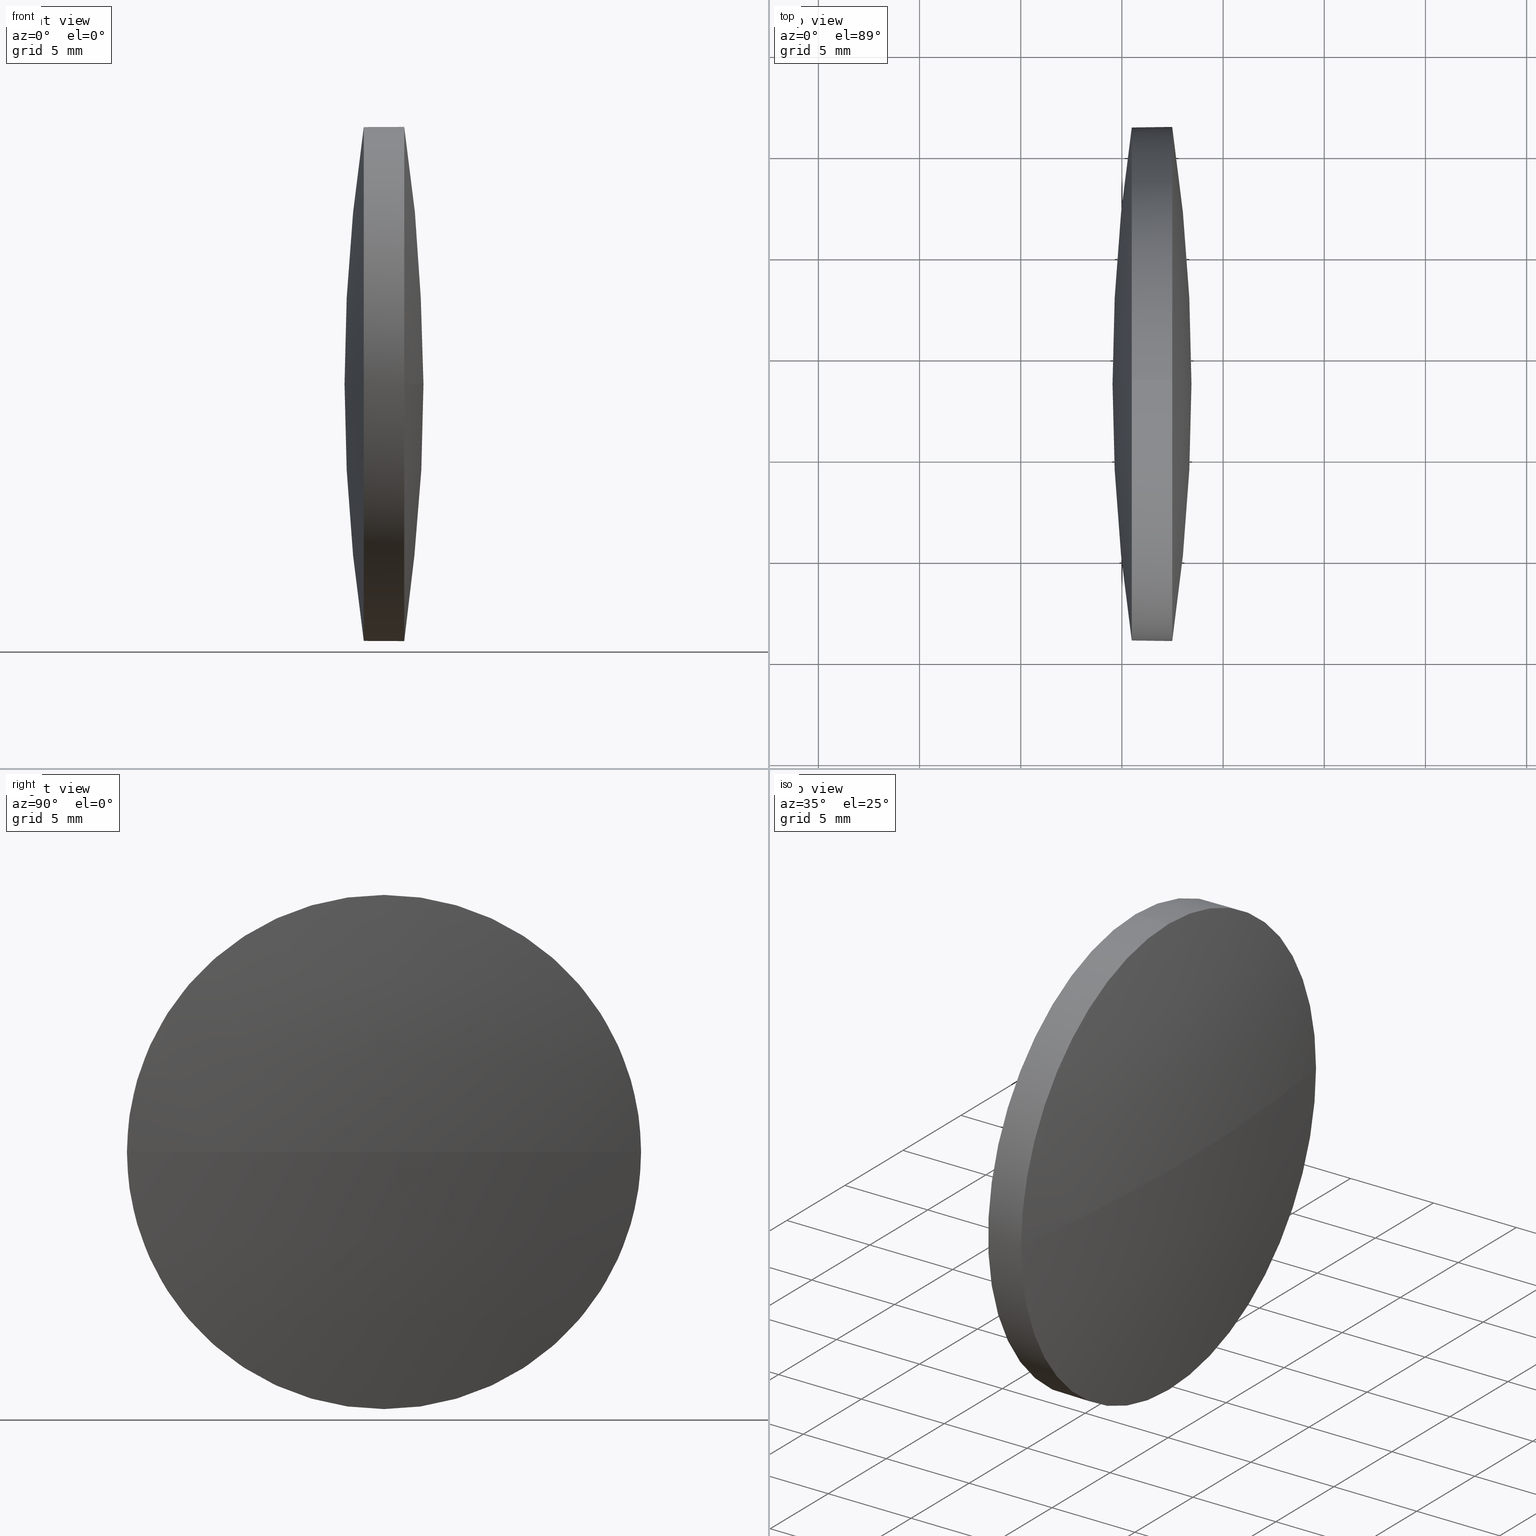
[diagram: canonical four-view strip — front | top / right | iso, engineering-drawing reading convention]
A machine part, canonical four-view strip (front | top / right | iso — engineering-drawing reading convention). The complete STEP part file that produces these views, byte-faithful:
ISO-10303-21;
HEADER;
FILE_DESCRIPTION (( 'STEP AP203' ),
    '1' );
FILE_NAME ('110142.STEP',
    '2019-07-08T09:22:34',
    ( '' ),
    ( '' ),
    'SwSTEP 2.0',
    'SolidWorks 2016',
    '' );
FILE_SCHEMA (( 'CONFIG_CONTROL_DESIGN' ));
ENDSEC;

DATA;
#1 = AXIS2_PLACEMENT_3D ( 'NONE', #20, #197, #127 ) ;
#2 = CARTESIAN_POINT ( 'NONE',  ( 87.48661080392687900, 48.63209213917348000, -12.70417422867516100 ) ) ;
#3 = DIRECTION ( 'NONE',  ( -1.000000000000000000, -0.0000000000000000000, -0.0000000000000000000 ) ) ;
#4 = APPLICATION_CONTEXT ( 'configuration controlled 3d designs of mechanical parts and assemblies' ) ;
#5 = DATE_TIME_ROLE ( 'classification_date' ) ;
#6 = COORDINATED_UNIVERSAL_TIME_OFFSET ( 8, 0, .AHEAD. ) ;
#7 = PERSON_AND_ORGANIZATION_ROLE ( 'design_supplier' ) ;
#8 = CC_DESIGN_PERSON_AND_ORGANIZATION_ASSIGNMENT ( #263, #158, ( #168 ) ) ;
#9 = DIRECTION ( 'NONE',  ( 0.0000000000000000000, 0.0000000000000000000, 1.000000000000000000 ) ) ;
#10 = APPROVAL ( #310, 'δָ��' ) ;
#11 = SPHERICAL_SURFACE ( 'NONE', #228, 85.36384337824375700 ) ;
#12 = SECURITY_CLASSIFICATION ( '', '', #28 ) ;
#13 = PRODUCT ( '110142', '110142', '', ( #54 ) ) ;
#14 = DIRECTION ( 'NONE',  ( 0.0000000000000000000, -1.224646799147353200E-016, 1.000000000000000000 ) ) ;
#15 = AXIS2_PLACEMENT_3D ( 'NONE', #44, #306, #134 ) ;
#16 = LINE ( 'NONE', #274, #141 ) ;
#17 = DIRECTION ( 'NONE',  ( 0.0000000000000000000, 0.0000000000000000000, 1.000000000000000000 ) ) ;
#18 = DIRECTION ( 'NONE',  ( 0.9999912878695206300, 5.111955789612099800E-019, 0.004174228678155401900 ) ) ;
#19 = APPROVAL_DATE_TIME ( #91, #219 ) ;
#20 = CARTESIAN_POINT ( 'NONE',  ( 87.48661080392687900, 48.63209213917348000, 0.0000000000000000000 ) ) ;
#21 = DIRECTION ( 'NONE',  ( 0.0000000000000000000, 0.0000000000000000000, -1.000000000000000000 ) ) ;
#22 = CARTESIAN_POINT ( 'NONE',  ( 169.9004558007695200, 48.63209213917348000, 0.0000000000000000000 ) ) ;
#23 = DIRECTION ( 'NONE',  ( 0.0000000000000000000, -1.625721998753305600E-016, 1.000000000000000000 ) ) ;
#24 = ORIENTED_EDGE ( 'NONE', *, *, #93, .T. ) ;
#25 = APPLICATION_CONTEXT ( 'configuration controlled 3d designs of mechanical parts and assemblies' ) ;
#26 = FACE_OUTER_BOUND ( 'NONE', #74, .T. ) ;
#27 = APPROVAL_ROLE ( '' ) ;
#28 = SECURITY_CLASSIFICATION_LEVEL ( 'unclassified' ) ;
#29 = EDGE_CURVE ( 'NONE', #280, #303, #163, .T. ) ;
#30 = CC_DESIGN_PERSON_AND_ORGANIZATION_ASSIGNMENT ( #147, #232, ( #245 ) ) ;
#31 = SECURITY_CLASSIFICATION ( '', '', #112 ) ;
#32 = COORDINATED_UNIVERSAL_TIME_OFFSET ( 8, 0, .AHEAD. ) ;
#33 =( GEOMETRIC_REPRESENTATION_CONTEXT ( 3 ) GLOBAL_UNCERTAINTY_ASSIGNED_CONTEXT ( ( #63 ) ) GLOBAL_UNIT_ASSIGNED_CONTEXT ( ( #183, #81, #261 ) ) REPRESENTATION_CONTEXT ( 'NONE', 'WORKASPACE' ) );
#34 = VERTEX_POINT ( 'NONE', #223 ) ;
#35 = PRODUCT_DEFINITION_FORMATION_WITH_SPECIFIED_SOURCE ( '�κ�', '', #13, .NOT_KNOWN. ) ;
#36 = VERTEX_POINT ( 'NONE', #150 ) ;
#37 = DATE_AND_TIME ( #133, #273 ) ;
#38 = APPROVAL_PERSON_ORGANIZATION ( #51, #129, #207 ) ;
#39 = DIRECTION ( 'NONE',  ( 0.0000000000000000000, 0.0000000000000000000, -1.000000000000000000 ) ) ;
#40 = CLOSED_SHELL ( 'NONE', ( #256, #233, #296, #202, #206, #96 ) ) ;
#41 = DATE_AND_TIME ( #151, #125 ) ;
#42 = DIRECTION ( 'NONE',  ( -1.000000000000000000, 0.0000000000000000000, 0.0000000000000000000 ) ) ;
#43 = PRODUCT_DEFINITION_SHAPE ( 'NONE', 'NONE',  #94 ) ;
#44 = CARTESIAN_POINT ( 'NONE',  ( 169.9004558007695200, 48.63209213917348000, 0.0000000000000000000 ) ) ;
#45 = EDGE_CURVE ( 'NONE', #280, #235, #275, .T. ) ;
#46 = FACE_OUTER_BOUND ( 'NONE', #258, .T. ) ;
#47 = COORDINATED_UNIVERSAL_TIME_OFFSET ( 8, 0, .AHEAD. ) ;
#48 = ORIENTED_EDGE ( 'NONE', *, *, #85, .T. ) ;
#49 = CARTESIAN_POINT ( 'NONE',  ( 87.48661080392687900, 48.63209213917348000, 0.0000000000000000000 ) ) ;
#50 = DIRECTION ( 'NONE',  ( -1.000000000000000000, -0.0000000000000000000, -0.0000000000000000000 ) ) ;
#51 = PERSON_AND_ORGANIZATION ( #265, #82 ) ;
#52 = APPROVAL_STATUS ( 'not_yet_approved' ) ;
#53 = ORIENTED_EDGE ( 'NONE', *, *, #224, .F. ) ;
#54 = MECHANICAL_CONTEXT ( 'NONE', #234, 'mechanical' ) ;
#55 = PERSON_AND_ORGANIZATION_ROLE ( 'creator' ) ;
#56 = FACE_OUTER_BOUND ( 'NONE', #242, .T. ) ;
#57 = CC_DESIGN_APPROVAL ( #10, ( #31 ) ) ;
#58 = PERSON_AND_ORGANIZATION ( #265, #82 ) ;
#59 = PERSON_AND_ORGANIZATION ( #265, #82 ) ;
#60 = CC_DESIGN_PERSON_AND_ORGANIZATION_ASSIGNMENT ( #98, #255, ( #13 ) ) ;
#61 = ORIENTED_EDGE ( 'NONE', *, *, #109, .T. ) ;
#62 = CIRCLE ( 'NONE', #170, 12.69582577131885000 ) ;
#63 = UNCERTAINTY_MEASURE_WITH_UNIT (LENGTH_MEASURE( 1.000000000000000100E-005 ), #183, 'distance_accuracy_value', 'NONE');
#64 = EDGE_CURVE ( 'NONE', #139, #303, #209, .T. ) ;
#65 = CC_DESIGN_PERSON_AND_ORGANIZATION_ASSIGNMENT ( #111, #259, ( #35 ) ) ;
#66 = ORIENTED_EDGE ( 'NONE', *, *, #101, .F. ) ;
#67 = APPROVAL_DATE_TIME ( #270, #129 ) ;
#68 = DATE_AND_TIME ( #187, #116 ) ;
#69 = AXIS2_PLACEMENT_3D ( 'NONE', #180, #203, #110 ) ;
#70 = APPROVAL_PERSON_ORGANIZATION ( #181, #10, #84 ) ;
#71 = CARTESIAN_POINT ( 'NONE',  ( 85.48662822818782600, 48.63209213917348000, 0.0000000000000000000 ) ) ;
#72 = PERSON_AND_ORGANIZATION ( #265, #82 ) ;
#73 = CARTESIAN_POINT ( 'NONE',  ( 3.073402634394560600, 48.63209213917353000, 0.0000000000000000000 ) ) ;
#74 = EDGE_LOOP ( 'NONE', ( #66, #126, #95, #61, #161 ) ) ;
#75 = DIRECTION ( 'NONE',  ( -1.000000000000000000, -0.0000000000000000000, -0.0000000000000000000 ) ) ;
#76 = CARTESIAN_POINT ( 'NONE',  ( 169.9004558007695200, 48.63209213917348000, -0.004232136107736039800 ) ) ;
#77 = FACE_OUTER_BOUND ( 'NONE', #143, .T. ) ;
#78 = ORIENTED_EDGE ( 'NONE', *, *, #101, .T. ) ;
#79 = CC_DESIGN_PERSON_AND_ORGANIZATION_ASSIGNMENT ( #251, #208, ( #12 ) ) ;
#80 = APPROVAL_ROLE ( '' ) ;
#81 =( NAMED_UNIT ( * ) PLANE_ANGLE_UNIT ( ) SI_UNIT ( $, .RADIAN. ) );
#82 = ORGANIZATION ( 'δָ��', 'δָ��', '' ) ;
#83 = APPROVAL ( #52, 'δָ��' ) ;
#84 = APPROVAL_ROLE ( '' ) ;
#85 = EDGE_CURVE ( 'NONE', #235, #139, #294, .T. ) ;
#86 = EDGE_LOOP ( 'NONE', ( #119, #142, #53, #243 ) ) ;
#87 = CC_DESIGN_PERSON_AND_ORGANIZATION_ASSIGNMENT ( #59, #283, ( #31 ) ) ;
#88 = AXIS2_PLACEMENT_3D ( 'NONE', #210, #9, #312 ) ;
#89 = ORIENTED_EDGE ( 'NONE', *, *, #64, .F. ) ;
#90 = LOCAL_TIME ( 17, 22, 34.00000000000000000, #293 ) ;
#91 = DATE_AND_TIME ( #204, #319 ) ;
#92 = CARTESIAN_POINT ( 'NONE',  ( 3.073402634394560600, 48.63209213917353000, 0.0000000000000000000 ) ) ;
#93 = EDGE_CURVE ( 'NONE', #198, #36, #290, .T. ) ;
#94 = PRODUCT_DEFINITION ( 'δ֪', '', #35, #289 ) ;
#95 = ORIENTED_EDGE ( 'NONE', *, *, #64, .T. ) ;
#96 = ADVANCED_FACE ( 'NONE', ( #117 ), #229, .T. ) ;
#97 = CC_DESIGN_DATE_AND_TIME_ASSIGNMENT ( #37, #257, ( #12 ) ) ;
#98 = PERSON_AND_ORGANIZATION ( #265, #82 ) ;
#99 = PRODUCT_RELATED_PRODUCT_CATEGORY ( 'detail', '', ( #13 ) ) ;
#100 = DIRECTION ( 'NONE',  ( 1.000000000000000000, 0.0000000000000000000, 0.0000000000000000000 ) ) ;
#101 = EDGE_CURVE ( 'NONE', #198, #34, #196, .T. ) ;
#102 = DIRECTION ( 'NONE',  ( 0.0000000000000000000, 0.0000000000000000000, 1.000000000000000000 ) ) ;
#103 = CALENDAR_DATE ( 2019, 8, 7 ) ;
#104 = CARTESIAN_POINT ( 'NONE',  ( 3.073402634394560600, 48.63209213917353000, 0.0000000000000000000 ) ) ;
#105 = CARTESIAN_POINT ( 'NONE',  ( 87.48661080392687900, 48.63209213917348000, 0.0000000000000000000 ) ) ;
#106 = APPROVAL_ROLE ( '' ) ;
#107 = MECHANICAL_CONTEXT ( 'NONE', #177, 'mechanical' ) ;
#108 = APPROVAL_STATUS ( 'not_yet_approved' ) ;
#109 = EDGE_CURVE ( 'NONE', #303, #272, #239, .T. ) ;
#110 = DIRECTION ( 'NONE',  ( 1.000000000000000000, 0.0000000000000000000, 0.0000000000000000000 ) ) ;
#111 = PERSON_AND_ORGANIZATION ( #265, #82 ) ;
#112 = SECURITY_CLASSIFICATION_LEVEL ( 'unclassified' ) ;
#113 = TOROIDAL_SURFACE ( 'NONE', #15, -0.004232136107736039800, 85.36384337824497900 ) ;
#114 = LOCAL_TIME ( 17, 22, 34.00000000000000000, #6 ) ;
#115 = AXIS2_PLACEMENT_3D ( 'NONE', #230, #121, #23 ) ;
#116 = LOCAL_TIME ( 17, 22, 34.00000000000000000, #264 ) ;
#117 = FACE_OUTER_BOUND ( 'NONE', #214, .T. ) ;
#118 = AXIS2_PLACEMENT_3D ( 'NONE', #92, #14, #297 ) ;
#119 = ORIENTED_EDGE ( 'NONE', *, *, #29, .F. ) ;
#120 = AXIS2_PLACEMENT_3D ( 'NONE', #199, #3, #175 ) ;
#121 = DIRECTION ( 'NONE',  ( -0.0000000000000000000, 1.000000000000000000, 1.224646799147353200E-016 ) ) ;
#122 = CARTESIAN_POINT ( 'NONE',  ( 85.48662822818782600, 48.63209213917348000, 0.0000000000000000000 ) ) ;
#123 = MANIFOLD_SOLID_BREP ( '��ת1', #40 ) ;
#124 = CARTESIAN_POINT ( 'NONE',  ( 87.48661080392689400, 35.92791791049834400, 0.0000000000000000000 ) ) ;
#125 = LOCAL_TIME ( 17, 22, 34.00000000000000000, #192 ) ;
#126 = ORIENTED_EDGE ( 'NONE', *, *, #288, .T. ) ;
#127 = DIRECTION ( 'NONE',  ( 0.0000000000000000000, 0.0000000000000000000, 1.000000000000000000 ) ) ;
#128 = DIRECTION ( 'NONE',  ( 0.0000000000000000000, 0.0000000000000000000, 1.000000000000000000 ) ) ;
#129 = APPROVAL ( #130, 'δָ��' ) ;
#130 = APPROVAL_STATUS ( 'not_yet_approved' ) ;
#131 = APPROVAL ( #108, 'δָ��' ) ;
#132 = APPLICATION_PROTOCOL_DEFINITION ( 'international standard', 'config_control_design', 1994, #234 ) ;
#133 = CALENDAR_DATE ( 2019, 8, 7 ) ;
#134 = DIRECTION ( 'NONE',  ( 0.0000000000000000000, 0.0000000000000000000, 1.000000000000000000 ) ) ;
#135 = APPROVAL_STATUS ( 'not_yet_approved' ) ;
#136 = VECTOR ( 'NONE', #322, 1000.000000000000000 ) ;
#137 = AXIS2_PLACEMENT_3D ( 'NONE', #271, #39, #42 ) ;
#138 = CALENDAR_DATE ( 2019, 8, 7 ) ;
#139 = VERTEX_POINT ( 'NONE', #153 ) ;
#140 = CC_DESIGN_DATE_AND_TIME_ASSIGNMENT ( #41, #184, ( #168 ) ) ;
#141 = VECTOR ( 'NONE', #18, 1000.000000000000000 ) ;
#142 = ORIENTED_EDGE ( 'NONE', *, *, #45, .T. ) ;
#143 = EDGE_LOOP ( 'NONE', ( #325, #212, #89, #231 ) ) ;
#144 = CC_DESIGN_DATE_AND_TIME_ASSIGNMENT ( #185, #287, ( #94 ) ) ;
#145 = CALENDAR_DATE ( 2019, 8, 7 ) ;
#146 = EDGE_CURVE ( 'NONE', #34, #272, #268, .T. ) ;
#147 = PERSON_AND_ORGANIZATION ( #265, #82 ) ;
#148 = ORIENTED_EDGE ( 'NONE', *, *, #288, .F. ) ;
#149 = TOROIDAL_SURFACE ( 'NONE', #314, -0.004232136107736039800, 85.36384337824497900 ) ;
#150 = CARTESIAN_POINT ( 'NONE',  ( 84.53661252743413000, 48.63209213917348000, 0.0000000000000000000 ) ) ;
#151 = CALENDAR_DATE ( 2019, 8, 7 ) ;
#152 = APPROVAL_DATE_TIME ( #173, #10 ) ;
#153 = CARTESIAN_POINT ( 'NONE',  ( 87.48661080392687900, 48.63209213917348000, 12.70417422867516100 ) ) ;
#154 = COORDINATED_UNIVERSAL_TIME_OFFSET ( 8, 0, .AHEAD. ) ;
#155 = CARTESIAN_POINT ( 'NONE',  ( 85.48662822818782600, 48.63209213917348000, -12.69582577131885000 ) ) ;
#156 = CARTESIAN_POINT ( 'NONE',  ( 85.48662822818782600, 48.63209213917348000, 12.69582577131883200 ) ) ;
#157 = LOCAL_TIME ( 17, 22, 34.00000000000000000, #47 ) ;
#158 = PERSON_AND_ORGANIZATION_ROLE ( 'creator' ) ;
#159 = APPLICATION_PROTOCOL_DEFINITION ( 'international standard', 'config_control_design', 1994, #25 ) ;
#160 = ORIENTED_EDGE ( 'NONE', *, *, #93, .F. ) ;
#161 = ORIENTED_EDGE ( 'NONE', *, *, #146, .F. ) ;
#162 = PERSON_AND_ORGANIZATION ( #265, #82 ) ;
#163 = CIRCLE ( 'NONE', #118, 85.36384337824375700 ) ;
#164 = LOCAL_TIME ( 17, 22, 34.00000000000000000, #267 ) ;
#165 = CALENDAR_DATE ( 2019, 8, 7 ) ;
#166 = AXIS2_PLACEMENT_3D ( 'NONE', #222, #171, #17 ) ;
#167 = CONICAL_SURFACE ( 'NONE', #188, 12.69582577131885000, 0.004174240800339277600 ) ;
#168 = PRODUCT_DEFINITION ( 'δ֪', '', #190, #318 ) ;
#169 = LOCAL_TIME ( 17, 22, 34.00000000000000000, #32 ) ;
#170 = AXIS2_PLACEMENT_3D ( 'NONE', #122, #50, #128 ) ;
#171 = DIRECTION ( 'NONE',  ( -1.000000000000000000, -0.0000000000000000000, -0.0000000000000000000 ) ) ;
#172 = EDGE_CURVE ( 'NONE', #34, #36, #218, .T. ) ;
#173 = DATE_AND_TIME ( #165, #237 ) ;
#174 = DATE_AND_TIME ( #103, #169 ) ;
#175 = DIRECTION ( 'NONE',  ( 0.0000000000000000000, 0.0000000000000000000, 1.000000000000000000 ) ) ;
#176 = DIRECTION ( 'NONE',  ( 0.0000000000000000000, 0.0000000000000000000, 1.000000000000000000 ) ) ;
#177 = APPLICATION_CONTEXT ( 'configuration controlled 3d designs of mechanical parts and assemblies' ) ;
#178 = APPLICATION_PROTOCOL_DEFINITION ( 'international standard', 'config_control_design', 1994, #4 ) ;
#179 = ORIENTED_EDGE ( 'NONE', *, *, #224, .T. ) ;
#180 = CARTESIAN_POINT ( 'NONE',  ( 0.0000000000000000000, 0.0000000000000000000, 0.0000000000000000000 ) ) ;
#181 = PERSON_AND_ORGANIZATION ( #265, #82 ) ;
#182 = CC_DESIGN_APPROVAL ( #194, ( #168 ) ) ;
#183 =( LENGTH_UNIT ( ) NAMED_UNIT ( * ) SI_UNIT ( .MILLI., .METRE. ) );
#184 = DATE_TIME_ROLE ( 'creation_date' ) ;
#185 = DATE_AND_TIME ( #145, #114 ) ;
#186 = ORIENTED_EDGE ( 'NONE', *, *, #189, .T. ) ;
#187 = CALENDAR_DATE ( 2019, 8, 7 ) ;
#188 = AXIS2_PLACEMENT_3D ( 'NONE', #71, #100, #302 ) ;
#189 = EDGE_CURVE ( 'NONE', #34, #198, #62, .T. ) ;
#190 = PRODUCT_DEFINITION_FORMATION_WITH_SPECIFIED_SOURCE ( '�κ�', '', #245, .NOT_KNOWN. ) ;
#191 = AXIS2_PLACEMENT_3D ( 'NONE', #226, #278, #324 ) ;
#192 = COORDINATED_UNIVERSAL_TIME_OFFSET ( 8, 0, .AHEAD. ) ;
#193 = CALENDAR_DATE ( 2019, 8, 7 ) ;
#194 = APPROVAL ( #135, 'δָ��' ) ;
#195 = CC_DESIGN_SECURITY_CLASSIFICATION ( #31, ( #35 ) ) ;
#196 = CIRCLE ( 'NONE', #120, 12.69582577131885000 ) ;
#197 = DIRECTION ( 'NONE',  ( -1.000000000000000000, -0.0000000000000000000, -0.0000000000000000000 ) ) ;
#198 = VERTEX_POINT ( 'NONE', #156 ) ;
#199 = CARTESIAN_POINT ( 'NONE',  ( 85.48662822818782600, 48.63209213917348000, 0.0000000000000000000 ) ) ;
#200 = APPROVAL_DATE_TIME ( #174, #131 ) ;
#201 = DIRECTION ( 'NONE',  ( 0.0000000000000000000, -1.000000000000000000, 0.0000000000000000000 ) ) ;
#202 = ADVANCED_FACE ( 'NONE', ( #46 ), #149, .T. ) ;
#203 = DIRECTION ( 'NONE',  ( 0.0000000000000000000, 0.0000000000000000000, 1.000000000000000000 ) ) ;
#204 = CALENDAR_DATE ( 2019, 8, 7 ) ;
#205 = SHAPE_DEFINITION_REPRESENTATION ( #43, #217 ) ;
#206 = ADVANCED_FACE ( 'NONE', ( #321 ), #260, .T. ) ;
#207 = APPROVAL_ROLE ( '' ) ;
#208 = PERSON_AND_ORGANIZATION_ROLE ( 'classification_officer' ) ;
#209 = CIRCLE ( 'NONE', #166, 12.70417422867516100 ) ;
#210 = CARTESIAN_POINT ( 'NONE',  ( 0.0000000000000000000, 0.0000000000000000000, 0.0000000000000000000 ) ) ;
#211 = ORIENTED_EDGE ( 'NONE', *, *, #172, .F. ) ;
#212 = ORIENTED_EDGE ( 'NONE', *, *, #29, .T. ) ;
#213 = AXIS2_PLACEMENT_3D ( 'NONE', #73, #227, #299 ) ;
#214 = EDGE_LOOP ( 'NONE', ( #148, #225, #220, #179, #48 ) ) ;
#215 = COORDINATED_UNIVERSAL_TIME_OFFSET ( 8, 0, .AHEAD. ) ;
#216 = CC_DESIGN_APPROVAL ( #219, ( #190 ) ) ;
#217 = ADVANCED_BREP_SHAPE_REPRESENTATION ( '110142', ( #123, #88 ), #33 ) ;
#218 = CIRCLE ( 'NONE', #115, 85.36384337824497900 ) ;
#219 = APPROVAL ( #307, 'δָ��' ) ;
#220 = ORIENTED_EDGE ( 'NONE', *, *, #146, .T. ) ;
#221 = COORDINATED_UNIVERSAL_TIME_OFFSET ( 8, 0, .AHEAD. ) ;
#222 = CARTESIAN_POINT ( 'NONE',  ( 87.48661080392687900, 48.63209213917348000, 0.0000000000000000000 ) ) ;
#223 = CARTESIAN_POINT ( 'NONE',  ( 85.48662822818782600, 48.63209213917348000, -12.69582577131883200 ) ) ;
#224 = EDGE_CURVE ( 'NONE', #272, #235, #313, .T. ) ;
#225 = ORIENTED_EDGE ( 'NONE', *, *, #189, .F. ) ;
#226 = CARTESIAN_POINT ( 'NONE',  ( 85.48662822818782600, 48.63209213917348000, 0.0000000000000000000 ) ) ;
#227 = DIRECTION ( 'NONE',  ( 0.0000000000000000000, 0.0000000000000000000, 1.000000000000000000 ) ) ;
#228 = AXIS2_PLACEMENT_3D ( 'NONE', #104, #102, #201 ) ;
#229 = CONICAL_SURFACE ( 'NONE', #191, 12.69582577131885000, 0.004174240800339277600 ) ;
#230 = CARTESIAN_POINT ( 'NONE',  ( 169.9004558007695200, 48.63209213917348000, 0.004232136107736039800 ) ) ;
#231 = ORIENTED_EDGE ( 'NONE', *, *, #85, .F. ) ;
#232 = PERSON_AND_ORGANIZATION_ROLE ( 'design_owner' ) ;
#233 = ADVANCED_FACE ( 'NONE', ( #77 ), #11, .T. ) ;
#234 = APPLICATION_CONTEXT ( 'configuration controlled 3d designs of mechanical parts and assemblies' ) ;
#235 = VERTEX_POINT ( 'NONE', #124 ) ;
#236 = CC_DESIGN_APPROVAL ( #131, ( #12 ) ) ;
#237 = LOCAL_TIME ( 17, 22, 34.00000000000000000, #215 ) ;
#238 = PERSON_AND_ORGANIZATION_ROLE ( 'creator' ) ;
#239 = CIRCLE ( 'NONE', #279, 12.70417422867516100 ) ;
#240 = APPROVAL_PERSON_ORGANIZATION ( #301, #131, #282 ) ;
#241 = CC_DESIGN_APPROVAL ( #129, ( #94 ) ) ;
#242 = EDGE_LOOP ( 'NONE', ( #78, #266, #160 ) ) ;
#243 = ORIENTED_EDGE ( 'NONE', *, *, #109, .F. ) ;
#244 = APPROVAL_PERSON_ORGANIZATION ( #72, #194, #80 ) ;
#245 = PRODUCT ( '110142', '110142', '', ( #107 ) ) ;
#246 = APPROVAL_DATE_TIME ( #253, #83 ) ;
#247 = DIRECTION ( 'NONE',  ( 0.0000000000000000000, -1.000000000000000000, 0.0000000000000000000 ) ) ;
#248 = CC_DESIGN_SECURITY_CLASSIFICATION ( #12, ( #190 ) ) ;
#249 = CC_DESIGN_DATE_AND_TIME_ASSIGNMENT ( #68, #5, ( #31 ) ) ;
#250 = CARTESIAN_POINT ( 'NONE',  ( 87.48661080392689400, 61.33626636784865100, 1.555812630495729100E-015 ) ) ;
#251 = PERSON_AND_ORGANIZATION ( #265, #82 ) ;
#252 = DIRECTION ( 'NONE',  ( 0.0000000000000000000, 0.0000000000000000000, 1.000000000000000000 ) ) ;
#253 = DATE_AND_TIME ( #193, #157 ) ;
#254 = PRODUCT_DEFINITION_SHAPE ( 'NONE', 'NONE',  #168 ) ;
#255 = PERSON_AND_ORGANIZATION_ROLE ( 'design_owner' ) ;
#256 = ADVANCED_FACE ( 'NONE', ( #26 ), #167, .T. ) ;
#257 = DATE_TIME_ROLE ( 'classification_date' ) ;
#258 = EDGE_LOOP ( 'NONE', ( #211, #186, #24 ) ) ;
#259 = PERSON_AND_ORGANIZATION_ROLE ( 'design_supplier' ) ;
#260 = SPHERICAL_SURFACE ( 'NONE', #213, 85.36384337824375700 ) ;
#261 =( NAMED_UNIT ( * ) SI_UNIT ( $, .STERADIAN. ) SOLID_ANGLE_UNIT ( ) );
#262 = PERSON_AND_ORGANIZATION ( #265, #82 ) ;
#263 = PERSON_AND_ORGANIZATION ( #265, #82 ) ;
#264 = COORDINATED_UNIVERSAL_TIME_OFFSET ( 8, 0, .AHEAD. ) ;
#265 = PERSON ( 'δָ��', 'δָ��', 'δָ��', ('δָ��'), ('δָ��'), ('δָ��') ) ;
#266 = ORIENTED_EDGE ( 'NONE', *, *, #172, .T. ) ;
#267 = COORDINATED_UNIVERSAL_TIME_OFFSET ( 8, 0, .AHEAD. ) ;
#268 = LINE ( 'NONE', #155, #136 ) ;
#269 = APPROVAL_PERSON_ORGANIZATION ( #262, #83, #27 ) ;
#270 = DATE_AND_TIME ( #281, #90 ) ;
#271 = CARTESIAN_POINT ( 'NONE',  ( 3.073402634394560600, 48.63209213917353000, 0.0000000000000000000 ) ) ;
#272 = VERTEX_POINT ( 'NONE', #2 ) ;
#273 = LOCAL_TIME ( 17, 22, 34.00000000000000000, #221 ) ;
#274 = CARTESIAN_POINT ( 'NONE',  ( 85.48662822818782600, 48.63209213917348000, 12.69582577131885000 ) ) ;
#275 = CIRCLE ( 'NONE', #137, 85.36384337824375700 ) ;
#276 = DIRECTION ( 'NONE',  ( 0.0000000000000000000, 0.0000000000000000000, 1.000000000000000000 ) ) ;
#277 = APPROVAL_DATE_TIME ( #323, #194 ) ;
#278 = DIRECTION ( 'NONE',  ( 1.000000000000000000, 0.0000000000000000000, 0.0000000000000000000 ) ) ;
#279 = AXIS2_PLACEMENT_3D ( 'NONE', #105, #75, #276 ) ;
#280 = VERTEX_POINT ( 'NONE', #298 ) ;
#281 = CALENDAR_DATE ( 2019, 8, 7 ) ;
#282 = APPROVAL_ROLE ( '' ) ;
#283 = PERSON_AND_ORGANIZATION_ROLE ( 'classification_officer' ) ;
#284 = PERSON_AND_ORGANIZATION_ROLE ( 'creator' ) ;
#285 = PRODUCT_RELATED_PRODUCT_CATEGORY ( 'detail', '', ( #245 ) ) ;
#286 = PERSON_AND_ORGANIZATION ( #265, #82 ) ;
#287 = DATE_TIME_ROLE ( 'creation_date' ) ;
#288 = EDGE_CURVE ( 'NONE', #198, #139, #16, .T. ) ;
#289 = DESIGN_CONTEXT ( 'detailed design', #4, 'design' ) ;
#290 = CIRCLE ( 'NONE', #295, 85.36384337824497900 ) ;
#291 = CC_DESIGN_PERSON_AND_ORGANIZATION_ASSIGNMENT ( #162, #55, ( #94 ) ) ;
#292 = CC_DESIGN_PERSON_AND_ORGANIZATION_ASSIGNMENT ( #309, #284, ( #190 ) ) ;
#293 = COORDINATED_UNIVERSAL_TIME_OFFSET ( 8, 0, .AHEAD. ) ;
#294 = CIRCLE ( 'NONE', #320, 12.70417422867516100 ) ;
#295 = AXIS2_PLACEMENT_3D ( 'NONE', #76, #247, #21 ) ;
#296 = ADVANCED_FACE ( 'NONE', ( #56 ), #113, .T. ) ;
#297 = DIRECTION ( 'NONE',  ( 0.0000000000000000000, -1.000000000000000000, -1.224646799147353200E-016 ) ) ;
#298 = CARTESIAN_POINT ( 'NONE',  ( 88.43724601263832600, 48.63209213917352300, 0.0000000000000000000 ) ) ;
#299 = DIRECTION ( 'NONE',  ( 0.0000000000000000000, -1.000000000000000000, 0.0000000000000000000 ) ) ;
#300 = DIRECTION ( 'NONE',  ( -1.000000000000000000, -0.0000000000000000000, -0.0000000000000000000 ) ) ;
#301 = PERSON_AND_ORGANIZATION ( #265, #82 ) ;
#302 = DIRECTION ( 'NONE',  ( 0.0000000000000000000, 0.0000000000000000000, -1.000000000000000000 ) ) ;
#303 = VERTEX_POINT ( 'NONE', #250 ) ;
#304 = DIRECTION ( 'NONE',  ( -1.000000000000000000, -0.0000000000000000000, -0.0000000000000000000 ) ) ;
#305 = CC_DESIGN_PERSON_AND_ORGANIZATION_ASSIGNMENT ( #286, #7, ( #190 ) ) ;
#306 = DIRECTION ( 'NONE',  ( -1.000000000000000000, -0.0000000000000000000, -0.0000000000000000000 ) ) ;
#307 = APPROVAL_STATUS ( 'not_yet_approved' ) ;
#308 = APPLICATION_PROTOCOL_DEFINITION ( 'international standard', 'config_control_design', 1994, #177 ) ;
#309 = PERSON_AND_ORGANIZATION ( #265, #82 ) ;
#310 = APPROVAL_STATUS ( 'not_yet_approved' ) ;
#311 = CC_DESIGN_PERSON_AND_ORGANIZATION_ASSIGNMENT ( #315, #238, ( #35 ) ) ;
#312 = DIRECTION ( 'NONE',  ( 1.000000000000000000, 0.0000000000000000000, 0.0000000000000000000 ) ) ;
#313 = CIRCLE ( 'NONE', #1, 12.70417422867516100 ) ;
#314 = AXIS2_PLACEMENT_3D ( 'NONE', #22, #304, #252 ) ;
#315 = PERSON_AND_ORGANIZATION ( #265, #82 ) ;
#316 = CC_DESIGN_APPROVAL ( #83, ( #35 ) ) ;
#317 = APPROVAL_PERSON_ORGANIZATION ( #58, #219, #106 ) ;
#318 = DESIGN_CONTEXT ( 'detailed design', #25, 'design' ) ;
#319 = LOCAL_TIME ( 17, 22, 34.00000000000000000, #154 ) ;
#320 = AXIS2_PLACEMENT_3D ( 'NONE', #49, #300, #176 ) ;
#321 = FACE_OUTER_BOUND ( 'NONE', #86, .T. ) ;
#322 = DIRECTION ( 'NONE',  ( 0.9999912878695206300, 0.0000000000000000000, -0.004174228678155401900 ) ) ;
#323 = DATE_AND_TIME ( #138, #164 ) ;
#324 = DIRECTION ( 'NONE',  ( 0.0000000000000000000, 0.0000000000000000000, -1.000000000000000000 ) ) ;
#325 = ORIENTED_EDGE ( 'NONE', *, *, #45, .F. ) ;
ENDSEC;
END-ISO-10303-21;
